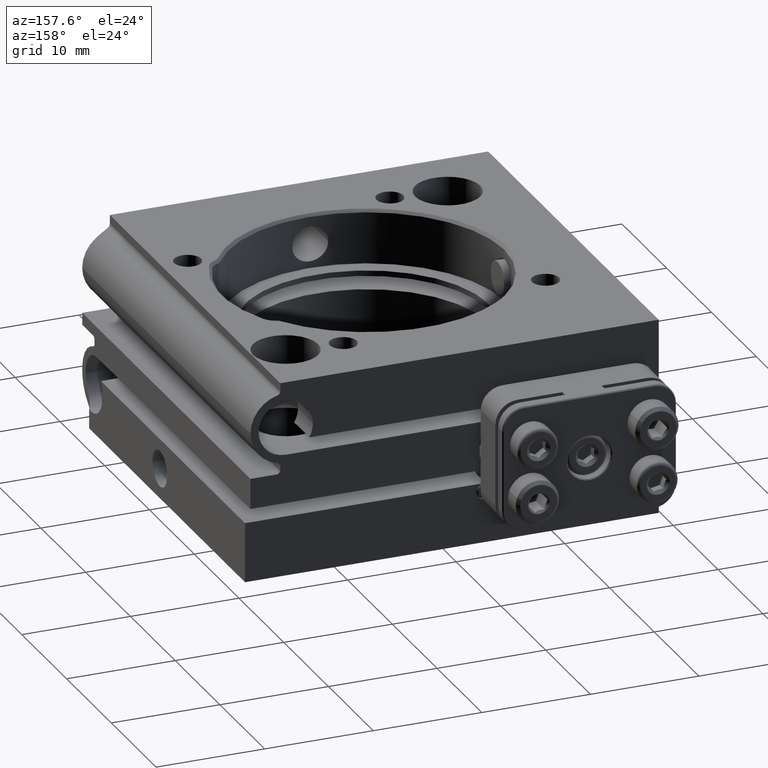
[diagram: clean part render]
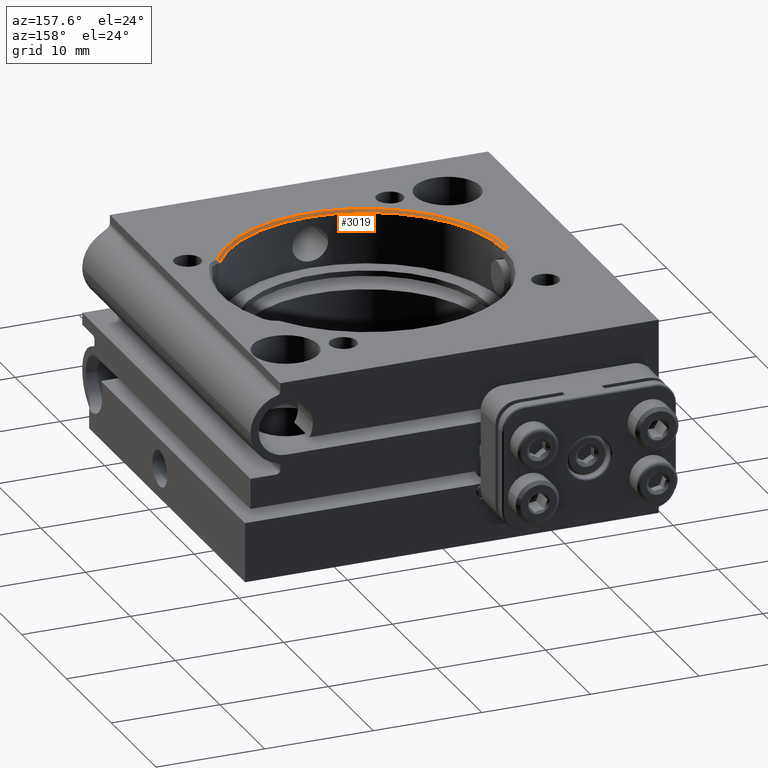
[diagram: same view with one face highlighted and labeled with its STEP entity id]
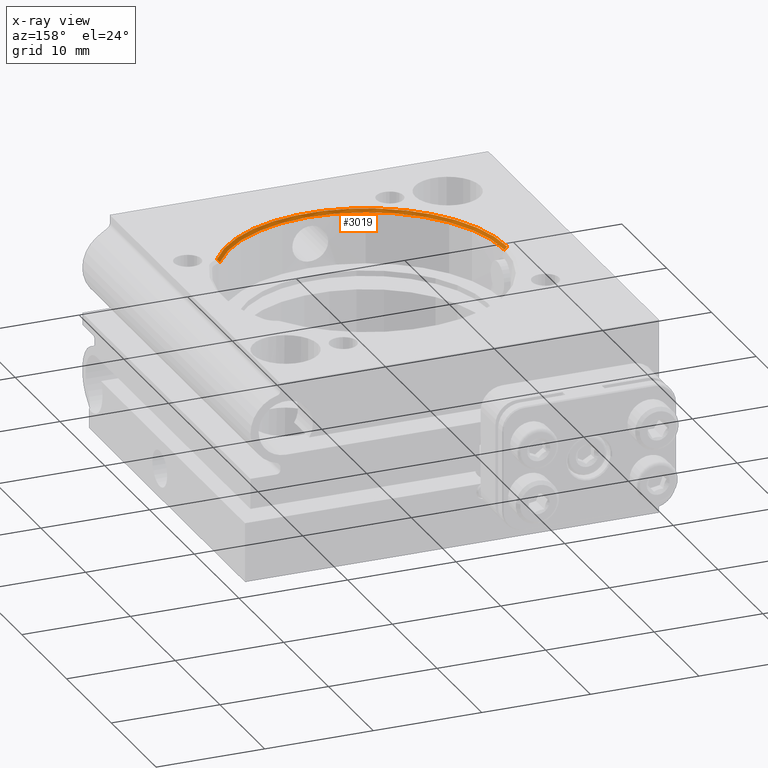
[diagram: x-ray of the same camera — body ghosted, the highlighted face saturated]
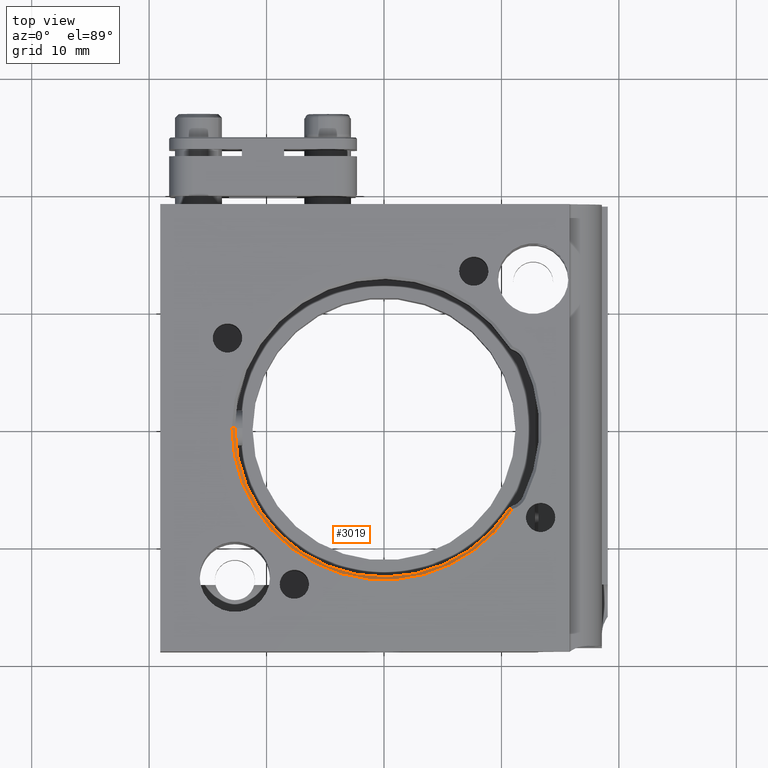
[diagram: same view with one face highlighted and labeled with its STEP entity id]
A machine part, auxiliary view. The second image highlights one B-rep face of the part: STEP entity #3019.
The next image is the same camera in x-ray: the body ghosted, the highlighted face saturated — about 0% of this face is hidden behind the body in this view.
A second angle (top view) of the same face is appended — the face is thin or edge-on in the first view.
In plain terms, the highlighted conical surface has half-angle 45 deg.
Its self-contained STEP definition (entity closure, byte-faithful):
#125 = CARTESIAN_POINT ( 'NONE',  ( -12.69999999999999929, 1.190714193910479759E-15, 8.749999999999991118 ) ) ;
#165 = LINE ( 'NONE', #9180, #9732 ) ;
#532 = CARTESIAN_POINT ( 'NONE',  ( 10.68890632383385864, -6.858373101567491581, 8.749999999999991118 ) ) ;
#871 = AXIS2_PLACEMENT_3D ( 'NONE', #9447, #4531, #6193 ) ;
#2215 = VECTOR ( 'NONE', #5793, 1000.000000000000000 ) ;
#2604 = LINE ( 'NONE', #125, #2215 ) ;
#2830 = DIRECTION ( 'NONE',  ( -9.244463733058732095E-33, 5.551115123125781470E-17, 1.000000000000000000 ) ) ;
#3019 = ADVANCED_FACE ( 'NONE', ( #6087 ), #8328, .F. ) ;
#3243 = CIRCLE ( 'NONE', #7758, 12.95000000000001172 ) ;
#3924 = VERTEX_POINT ( 'NONE', #8867 ) ;
#4258 = CARTESIAN_POINT ( 'NONE',  ( -12.95000000000001172, 1.218469769526109855E-15, 9.000000000000000000 ) ) ;
#4531 = DIRECTION ( 'NONE',  ( -9.244463733058732095E-33, 5.551115123125781470E-17, 1.000000000000000000 ) ) ;
#4631 = CARTESIAN_POINT ( 'NONE',  ( -8.320017359752857790E-32, 4.996003610813203446E-16, 9.000000000000000000 ) ) ;
#4671 = DIRECTION ( 'NONE',  ( -1.000000000000000000, 5.551115123125783935E-17, 0.000000000000000000 ) ) ;
#4693 = DIRECTION ( 'NONE',  ( 9.244463733058732095E-33, -5.551115123125781470E-17, -1.000000000000000000 ) ) ;
#5352 = VERTEX_POINT ( 'NONE', #532 ) ;
#5793 = DIRECTION ( 'NONE',  ( -0.7071067811865524577, 7.850462293418874601E-17, 0.7071067811865426878 ) ) ;
#5816 = CARTESIAN_POINT ( 'NONE',  ( 10.89931786564162053, -6.993380446086542079, 9.000000000000000000 ) ) ;
#5817 = ORIENTED_EDGE ( 'NONE', *, *, #7988, .T. ) ;
#6087 = FACE_OUTER_BOUND ( 'NONE', #10629, .T. ) ;
#6193 = DIRECTION ( 'NONE',  ( -1.000000000000000000, 5.551115123125783935E-17, 0.000000000000000000 ) ) ;
#6984 = EDGE_CURVE ( 'NONE', #3924, #5352, #7941, .T. ) ;
#7153 = ORIENTED_EDGE ( 'NONE', *, *, #9761, .F. ) ;
#7246 = EDGE_CURVE ( 'NONE', #3924, #10537, #2604, .T. ) ;
#7457 = ORIENTED_EDGE ( 'NONE', *, *, #6984, .F. ) ;
#7758 = AXIS2_PLACEMENT_3D ( 'NONE', #4631, #4693, #8008 ) ;
#7941 = CIRCLE ( 'NONE', #8115, 12.69999999999999929 ) ;
#7988 = EDGE_CURVE ( 'NONE', #8406, #5352, #165, .T. ) ;
#8001 = ORIENTED_EDGE ( 'NONE', *, *, #7246, .T. ) ;
#8008 = DIRECTION ( 'NONE',  ( -1.000000000000000000, 5.551115123125783935E-17, 0.000000000000000000 ) ) ;
#8115 = AXIS2_PLACEMENT_3D ( 'NONE', #10320, #2830, #4671 ) ;
#8328 = CONICAL_SURFACE ( 'NONE', #871, 12.69999999999999929, 0.7853981633974552734 ) ;
#8406 = VERTEX_POINT ( 'NONE', #5816 ) ;
#8454 = DIRECTION ( 'NONE',  ( -0.5951337122087186904, 0.3818584352776220880, -0.7071067811865446862 ) ) ;
#8867 = CARTESIAN_POINT ( 'NONE',  ( -12.69999999999999929, 1.204591981718294807E-15, 8.749999999999991118 ) ) ;
#9180 = CARTESIAN_POINT ( 'NONE',  ( 10.89931786564162053, -6.993380446086542079, 9.000000000000000000 ) ) ;
#9447 = CARTESIAN_POINT ( 'NONE',  ( -8.088905766426381825E-32, 4.857225732735053948E-16, 8.749999999999991118 ) ) ;
#9732 = VECTOR ( 'NONE', #8454, 1000.000000000000114 ) ;
#9761 = EDGE_CURVE ( 'NONE', #8406, #10537, #3243, .T. ) ;
#10320 = CARTESIAN_POINT ( 'NONE',  ( -8.088905766426381825E-32, 4.857225732735053948E-16, 8.749999999999991118 ) ) ;
#10537 = VERTEX_POINT ( 'NONE', #4258 ) ;
#10629 = EDGE_LOOP ( 'NONE', ( #7457, #8001, #7153, #5817 ) ) ;